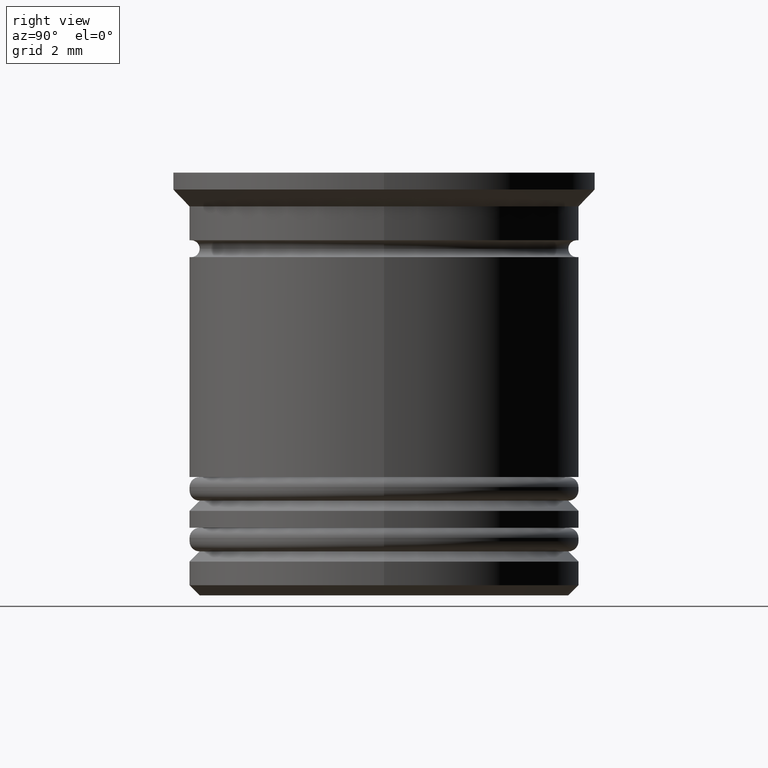
[diagram: clean part render]
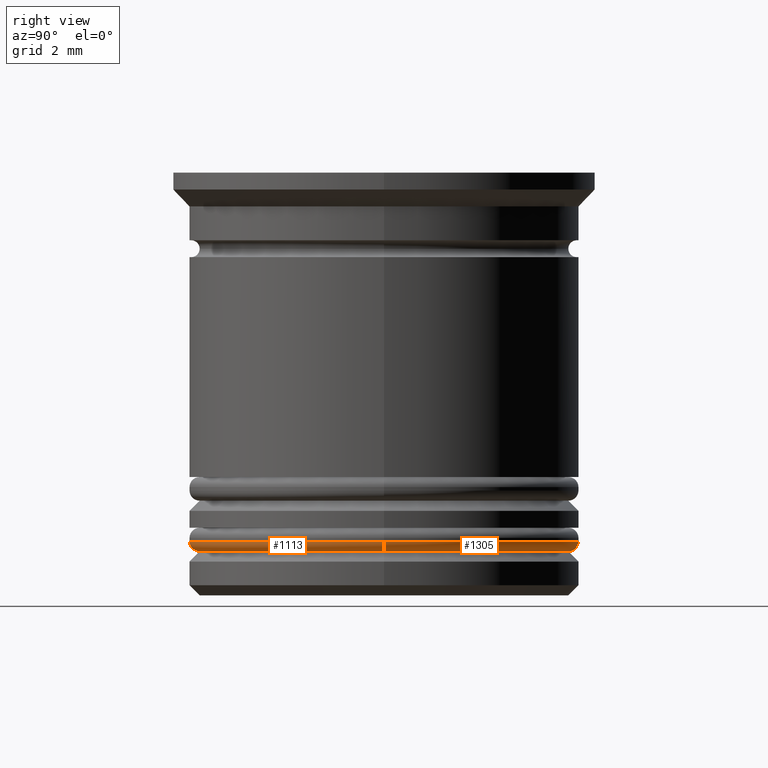
[diagram: same view with one multi-face feature highlighted, each face labeled with its STEP entity id]
A machine part, right view. The highlighted faces form ONE feature: a constant-radius fillet chain: 2 tangent blend faces with common blend radius 0.3 mm. The faces share edges in the B-rep.
Their STEP definitions:
[1] entity #1305 (Torus):
#9 = AXIS2_PLACEMENT_3D ( 'NONE', #1545, #1730, #323 ) ;
#68 = CIRCLE ( 'NONE', #1977, 5.450000000000001954 ) ;
#178 = CARTESIAN_POINT ( 'NONE',  ( 5.450000000000001954, 0.000000000000000000, -11.20000000000000462 ) ) ;
#245 = EDGE_CURVE ( 'NONE', #858, #439, #1239, .T. ) ;
#304 = FACE_OUTER_BOUND ( 'NONE', #659, .T. ) ;
#323 = DIRECTION ( 'NONE',  ( -1.000000000000000000, 1.224646799147353207E-16, 0.000000000000000000 ) ) ;
#356 = TOROIDAL_SURFACE ( 'NONE', #1744, 5.450000000000001954, 0.2999999999999999889 ) ;
#365 = DIRECTION ( 'NONE',  ( 0.000000000000000000, -1.000000000000000000, 0.000000000000000000 ) ) ;
#388 = CIRCLE ( 'NONE', #9, 0.2999999999999999334 ) ;
#438 = DIRECTION ( 'NONE',  ( 1.000000000000000000, 0.000000000000000000, 0.000000000000000000 ) ) ;
#439 = VERTEX_POINT ( 'NONE', #555 ) ;
#463 = ORIENTED_EDGE ( 'NONE', *, *, #1362, .T. ) ;
#464 = VERTEX_POINT ( 'NONE', #1180 ) ;
#540 = CARTESIAN_POINT ( 'NONE',  ( -5.750000000000001776, 7.041719095097282852E-16, -10.90000000000000391 ) ) ;
#555 = CARTESIAN_POINT ( 'NONE',  ( 5.750000000000001776, 0.000000000000000000, -10.90000000000000391 ) ) ;
#659 = EDGE_LOOP ( 'NONE', ( #1408, #463, #1888, #1014 ) ) ;
#713 = DIRECTION ( 'NONE',  ( 0.000000000000000000, 0.000000000000000000, 1.000000000000000000 ) ) ;
#858 = VERTEX_POINT ( 'NONE', #178 ) ;
#981 = DIRECTION ( 'NONE',  ( 0.000000000000000000, 0.000000000000000000, -1.000000000000000000 ) ) ;
#1014 = ORIENTED_EDGE ( 'NONE', *, *, #245, .F. ) ;
#1051 = DIRECTION ( 'NONE',  ( -0.000000000000000000, -0.000000000000000000, -1.000000000000000000 ) ) ;
#1104 = CIRCLE ( 'NONE', #1585, 5.750000000000001776 ) ;
#1134 = VERTEX_POINT ( 'NONE', #540 ) ;
#1180 = CARTESIAN_POINT ( 'NONE',  ( -5.450000000000001954, 6.858022075225179538E-16, -11.20000000000000462 ) ) ;
#1236 = DIRECTION ( 'NONE',  ( 1.000000000000000000, 0.000000000000000000, 0.000000000000000000 ) ) ;
#1239 = CIRCLE ( 'NONE', #1607, 0.2999999999999999334 ) ;
#1305 = ADVANCED_FACE ( 'NONE', ( #304 ), #356, .T. ) ;
#1319 = CARTESIAN_POINT ( 'NONE',  ( 0.000000000000000000, 0.000000000000000000, -10.90000000000000391 ) ) ;
#1362 = EDGE_CURVE ( 'NONE', #464, #1134, #388, .T. ) ;
#1408 = ORIENTED_EDGE ( 'NONE', *, *, #1929, .F. ) ;
#1489 = DIRECTION ( 'NONE',  ( 0.000000000000000000, 0.000000000000000000, 1.000000000000000000 ) ) ;
#1545 = CARTESIAN_POINT ( 'NONE',  ( -5.450000000000001954, 6.674325055353077210E-16, -10.90000000000000391 ) ) ;
#1582 = EDGE_CURVE ( 'NONE', #439, #1134, #1104, .T. ) ;
#1585 = AXIS2_PLACEMENT_3D ( 'NONE', #1319, #713, #1916 ) ;
#1607 = AXIS2_PLACEMENT_3D ( 'NONE', #1892, #365, #981 ) ;
#1730 = DIRECTION ( 'NONE',  ( 1.224646799147353207E-16, 1.000000000000000000, -0.000000000000000000 ) ) ;
#1744 = AXIS2_PLACEMENT_3D ( 'NONE', #1941, #1489, #438 ) ;
#1888 = ORIENTED_EDGE ( 'NONE', *, *, #1582, .F. ) ;
#1892 = CARTESIAN_POINT ( 'NONE',  ( 5.450000000000001954, 0.000000000000000000, -10.90000000000000391 ) ) ;
#1916 = DIRECTION ( 'NONE',  ( 1.000000000000000000, 0.000000000000000000, 0.000000000000000000 ) ) ;
#1929 = EDGE_CURVE ( 'NONE', #464, #858, #68, .T. ) ;
#1941 = CARTESIAN_POINT ( 'NONE',  ( 0.000000000000000000, 0.000000000000000000, -10.90000000000000391 ) ) ;
#1977 = AXIS2_PLACEMENT_3D ( 'NONE', #1989, #1051, #1236 ) ;
#1989 = CARTESIAN_POINT ( 'NONE',  ( 0.000000000000000000, 0.000000000000000000, -11.20000000000000462 ) ) ;
[2] entity #1113 (Torus):
#9 = AXIS2_PLACEMENT_3D ( 'NONE', #1545, #1730, #323 ) ;
#94 = ORIENTED_EDGE ( 'NONE', *, *, #245, .T. ) ;
#130 = CIRCLE ( 'NONE', #1243, 5.750000000000001776 ) ;
#178 = CARTESIAN_POINT ( 'NONE',  ( 5.450000000000001954, 0.000000000000000000, -11.20000000000000462 ) ) ;
#231 = EDGE_LOOP ( 'NONE', ( #662, #1166, #94, #771 ) ) ;
#245 = EDGE_CURVE ( 'NONE', #858, #439, #1239, .T. ) ;
#323 = DIRECTION ( 'NONE',  ( -1.000000000000000000, 1.224646799147353207E-16, 0.000000000000000000 ) ) ;
#365 = DIRECTION ( 'NONE',  ( 0.000000000000000000, -1.000000000000000000, 0.000000000000000000 ) ) ;
#381 = DIRECTION ( 'NONE',  ( 1.000000000000000000, 0.000000000000000000, 0.000000000000000000 ) ) ;
#388 = CIRCLE ( 'NONE', #9, 0.2999999999999999334 ) ;
#439 = VERTEX_POINT ( 'NONE', #555 ) ;
#464 = VERTEX_POINT ( 'NONE', #1180 ) ;
#540 = CARTESIAN_POINT ( 'NONE',  ( -5.750000000000001776, 7.041719095097282852E-16, -10.90000000000000391 ) ) ;
#555 = CARTESIAN_POINT ( 'NONE',  ( 5.750000000000001776, 0.000000000000000000, -10.90000000000000391 ) ) ;
#638 = EDGE_CURVE ( 'NONE', #1134, #439, #130, .T. ) ;
#662 = ORIENTED_EDGE ( 'NONE', *, *, #1362, .F. ) ;
#742 = CIRCLE ( 'NONE', #1682, 5.450000000000001954 ) ;
#771 = ORIENTED_EDGE ( 'NONE', *, *, #638, .F. ) ;
#810 = FACE_OUTER_BOUND ( 'NONE', #231, .T. ) ;
#858 = VERTEX_POINT ( 'NONE', #178 ) ;
#911 = DIRECTION ( 'NONE',  ( -0.000000000000000000, -0.000000000000000000, -1.000000000000000000 ) ) ;
#943 = CARTESIAN_POINT ( 'NONE',  ( 0.000000000000000000, 0.000000000000000000, -10.90000000000000391 ) ) ;
#981 = DIRECTION ( 'NONE',  ( 0.000000000000000000, 0.000000000000000000, -1.000000000000000000 ) ) ;
#1081 = CARTESIAN_POINT ( 'NONE',  ( 0.000000000000000000, 0.000000000000000000, -11.20000000000000462 ) ) ;
#1113 = ADVANCED_FACE ( 'NONE', ( #810 ), #1841, .T. ) ;
#1134 = VERTEX_POINT ( 'NONE', #540 ) ;
#1135 = AXIS2_PLACEMENT_3D ( 'NONE', #1597, #1138, #381 ) ;
#1138 = DIRECTION ( 'NONE',  ( 0.000000000000000000, 0.000000000000000000, 1.000000000000000000 ) ) ;
#1166 = ORIENTED_EDGE ( 'NONE', *, *, #1266, .F. ) ;
#1180 = CARTESIAN_POINT ( 'NONE',  ( -5.450000000000001954, 6.858022075225179538E-16, -11.20000000000000462 ) ) ;
#1239 = CIRCLE ( 'NONE', #1607, 0.2999999999999999334 ) ;
#1242 = DIRECTION ( 'NONE',  ( 1.000000000000000000, 0.000000000000000000, 0.000000000000000000 ) ) ;
#1243 = AXIS2_PLACEMENT_3D ( 'NONE', #943, #1721, #1242 ) ;
#1266 = EDGE_CURVE ( 'NONE', #858, #464, #742, .T. ) ;
#1362 = EDGE_CURVE ( 'NONE', #464, #1134, #388, .T. ) ;
#1545 = CARTESIAN_POINT ( 'NONE',  ( -5.450000000000001954, 6.674325055353077210E-16, -10.90000000000000391 ) ) ;
#1597 = CARTESIAN_POINT ( 'NONE',  ( 0.000000000000000000, 0.000000000000000000, -10.90000000000000391 ) ) ;
#1607 = AXIS2_PLACEMENT_3D ( 'NONE', #1892, #365, #981 ) ;
#1682 = AXIS2_PLACEMENT_3D ( 'NONE', #1081, #911, #1699 ) ;
#1699 = DIRECTION ( 'NONE',  ( 1.000000000000000000, 0.000000000000000000, 0.000000000000000000 ) ) ;
#1721 = DIRECTION ( 'NONE',  ( 0.000000000000000000, 0.000000000000000000, 1.000000000000000000 ) ) ;
#1730 = DIRECTION ( 'NONE',  ( 1.224646799147353207E-16, 1.000000000000000000, -0.000000000000000000 ) ) ;
#1841 = TOROIDAL_SURFACE ( 'NONE', #1135, 5.450000000000001954, 0.2999999999999999889 ) ;
#1892 = CARTESIAN_POINT ( 'NONE',  ( 5.450000000000001954, 0.000000000000000000, -10.90000000000000391 ) ) ;